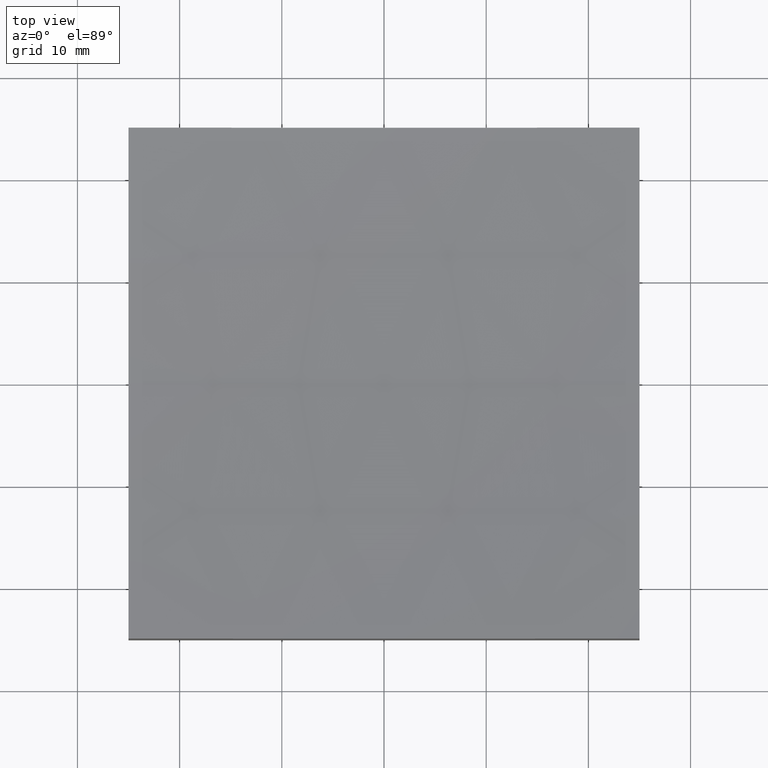
[diagram: clean part render]
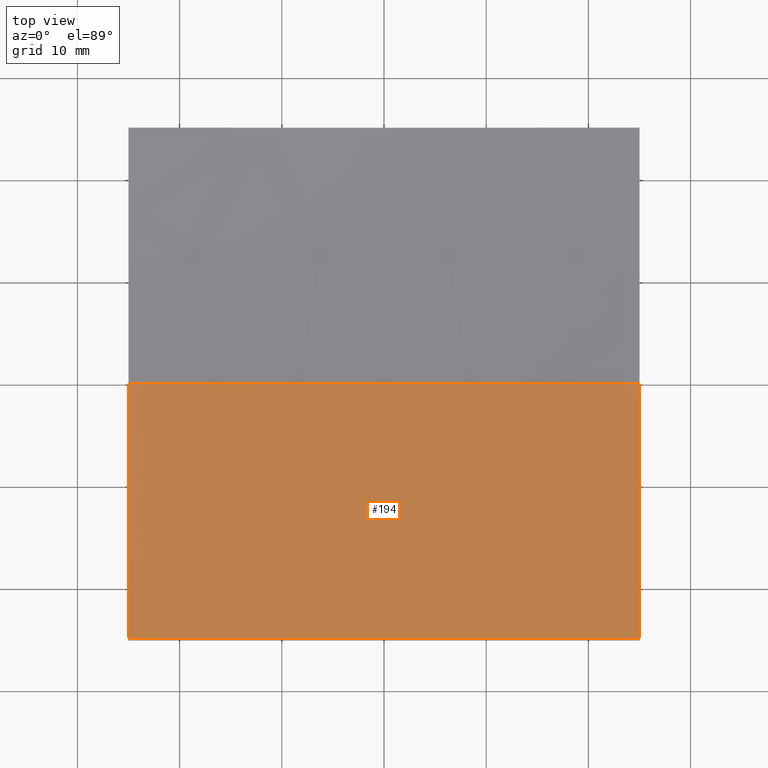
[diagram: same view with one face highlighted and labeled with its STEP entity id]
A machine part, top view. The second image highlights one B-rep face of the part: STEP entity #194.
In plain terms, the highlighted spherical surface has radius 300 mm.
Its self-contained STEP definition (entity closure, byte-faithful):
#3 = AXIS2_PLACEMENT_3D ( 'NONE', #153, #94, #178 ) ;
#10 = DIRECTION ( 'NONE',  ( -0.0000000000000000000, 1.000000000000000000, 0.0000000000000000000 ) ) ;
#21 = CARTESIAN_POINT ( 'NONE',  ( 3.784158609365321758E-14, -25.00000000000000711, 309.0000000000000000 ) ) ;
#31 = EDGE_CURVE ( 'NONE', #155, #214, #158, .T. ) ;
#34 = ORIENTED_EDGE ( 'NONE', *, *, #241, .T. ) ;
#44 = CARTESIAN_POINT ( 'NONE',  ( -25.00000000000000355, -1.734723475976810250E-15, 309.0000000000000000 ) ) ;
#47 = DIRECTION ( 'NONE',  ( 0.0000000000000000000, 0.0000000000000000000, -1.000000000000000000 ) ) ;
#48 = ORIENTED_EDGE ( 'NONE', *, *, #180, .F. ) ;
#51 = AXIS2_PLACEMENT_3D ( 'NONE', #21, #109, #90 ) ;
#52 = CIRCLE ( 'NONE', #210, 298.9565185775348368 ) ;
#55 = AXIS2_PLACEMENT_3D ( 'NONE', #157, #60, #47 ) ;
#58 = CARTESIAN_POINT ( 'NONE',  ( -25.00000000000000355, 3.061616997868399214E-15, 10.04348142246513831 ) ) ;
#60 = DIRECTION ( 'NONE',  ( 0.0000000000000000000, -1.000000000000000000, 0.0000000000000000000 ) ) ;
#69 = DIRECTION ( 'NONE',  ( 1.000000000000000000, 0.0000000000000000000, 3.700743415417189125E-16 ) ) ;
#85 = CARTESIAN_POINT ( 'NONE',  ( 24.99999999999999645, 1.734723475976804333E-15, 309.0000000000000000 ) ) ;
#90 = DIRECTION ( 'NONE',  ( 0.0000000000000000000, 0.0000000000000000000, 1.000000000000000000 ) ) ;
#91 = EDGE_CURVE ( 'NONE', #214, #164, #159, .T. ) ;
#93 = ORIENTED_EDGE ( 'NONE', *, *, #31, .F. ) ;
#94 = DIRECTION ( 'NONE',  ( 1.224646799147353207E-16, 1.000000000000000000, 3.574777501448733644E-32 ) ) ;
#99 = SPHERICAL_SURFACE ( 'NONE', #242, 299.9999999999999432 ) ;
#105 = DIRECTION ( 'NONE',  ( 1.000000000000000000, 6.938893903907228378E-17, -0.0000000000000000000 ) ) ;
#109 = DIRECTION ( 'NONE',  ( 0.0000000000000000000, 1.000000000000000000, 0.0000000000000000000 ) ) ;
#113 = CARTESIAN_POINT ( 'NONE',  ( 1.437821085967289657E-13, 0.0000000000000000000, 9.000000000000063949 ) ) ;
#118 = ORIENTED_EDGE ( 'NONE', *, *, #137, .T. ) ;
#124 = DIRECTION ( 'NONE',  ( -6.963113502515198163E-17, 1.000000000000000000, 0.0000000000000000000 ) ) ;
#132 = DIRECTION ( 'NONE',  ( -6.963113502515198163E-17, 1.000000000000000000, 0.0000000000000000000 ) ) ;
#137 = EDGE_CURVE ( 'NONE', #151, #164, #163, .T. ) ;
#145 = CIRCLE ( 'NONE', #55, 299.9999999999999432 ) ;
#151 = VERTEX_POINT ( 'NONE', #113 ) ;
#153 = CARTESIAN_POINT ( 'NONE',  ( 3.784158609365321758E-14, 0.0000000000000000000, 309.0000000000000000 ) ) ;
#155 = VERTEX_POINT ( 'NONE', #209 ) ;
#156 = DIRECTION ( 'NONE',  ( 1.000000000000000000, 6.938893903907228378E-17, -0.0000000000000000000 ) ) ;
#157 = CARTESIAN_POINT ( 'NONE',  ( 3.784158609365321758E-14, 0.0000000000000000000, 309.0000000000000000 ) ) ;
#158 = CIRCLE ( 'NONE', #51, 298.9565185775348368 ) ;
#159 = CIRCLE ( 'NONE', #193, 298.9565185775348368 ) ;
#163 = CIRCLE ( 'NONE', #3, 299.9999999999999432 ) ;
#164 = VERTEX_POINT ( 'NONE', #58 ) ;
#170 = CARTESIAN_POINT ( 'NONE',  ( 24.99999999999999645, -9.629649721936179265E-32, 10.04348142246513831 ) ) ;
#178 = DIRECTION ( 'NONE',  ( -1.000000000000000000, 1.224646799147353207E-16, 0.0000000000000000000 ) ) ;
#180 = EDGE_CURVE ( 'NONE', #151, #245, #145, .T. ) ;
#186 = CARTESIAN_POINT ( 'NONE',  ( 3.784158609365321758E-14, 0.0000000000000000000, 309.0000000000000000 ) ) ;
#187 = EDGE_LOOP ( 'NONE', ( #48, #118, #226, #93, #34 ) ) ;
#193 = AXIS2_PLACEMENT_3D ( 'NONE', #44, #156, #132 ) ;
#194 = ADVANCED_FACE ( 'NONE', ( #222 ), #99, .F. ) ;
#198 = CARTESIAN_POINT ( 'NONE',  ( -25.00000000000000000, -25.00000000000000711, 11.09061780467546221 ) ) ;
#209 = CARTESIAN_POINT ( 'NONE',  ( 25.00000000000000000, -25.00000000000000711, 11.09061780467546221 ) ) ;
#210 = AXIS2_PLACEMENT_3D ( 'NONE', #85, #105, #124 ) ;
#214 = VERTEX_POINT ( 'NONE', #198 ) ;
#222 = FACE_OUTER_BOUND ( 'NONE', #187, .T. ) ;
#226 = ORIENTED_EDGE ( 'NONE', *, *, #91, .F. ) ;
#241 = EDGE_CURVE ( 'NONE', #155, #245, #52, .T. ) ;
#242 = AXIS2_PLACEMENT_3D ( 'NONE', #186, #10, #69 ) ;
#245 = VERTEX_POINT ( 'NONE', #170 ) ;